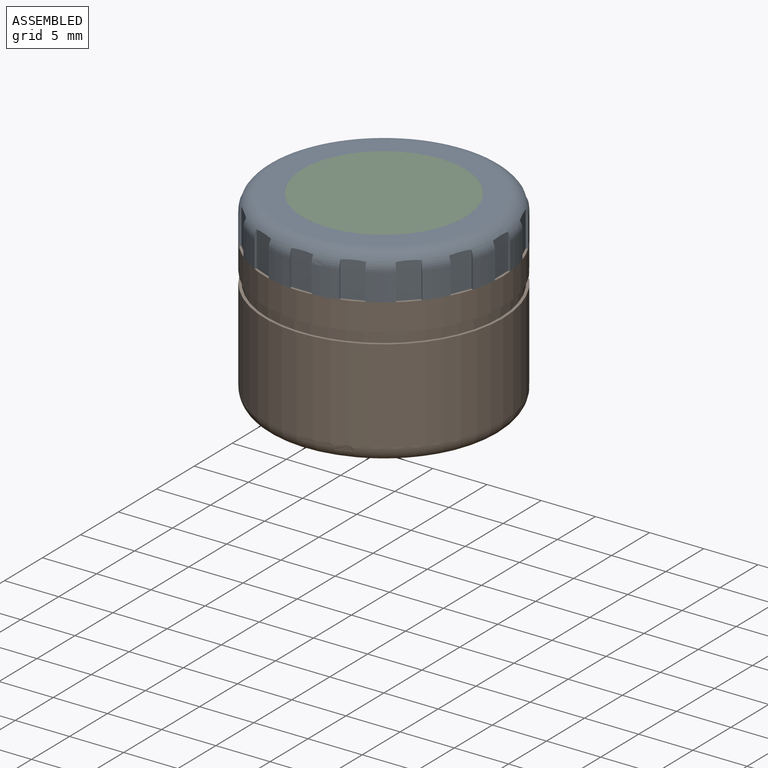
[diagram: assembled view]
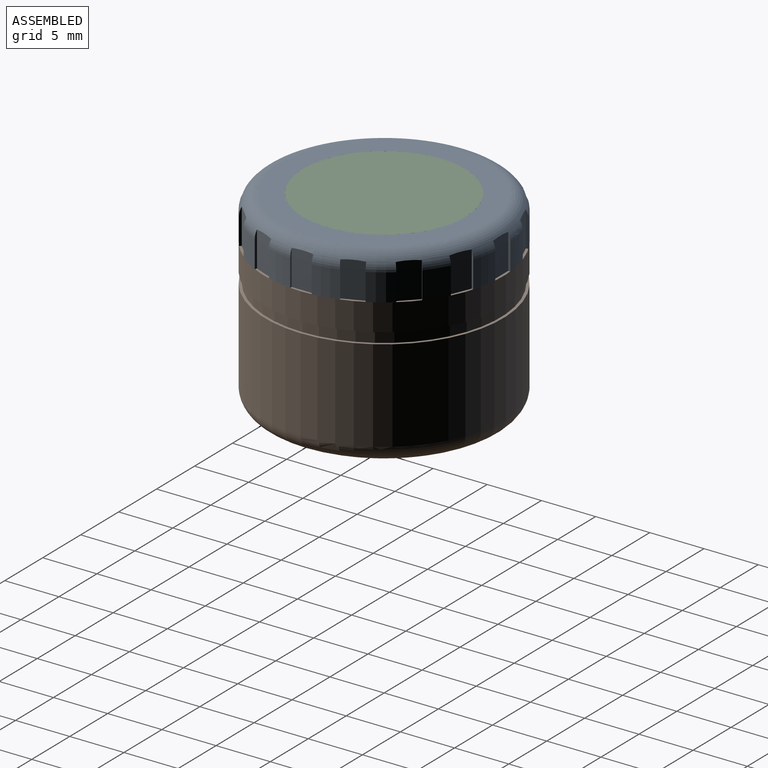
[diagram: assembled view, second angle]
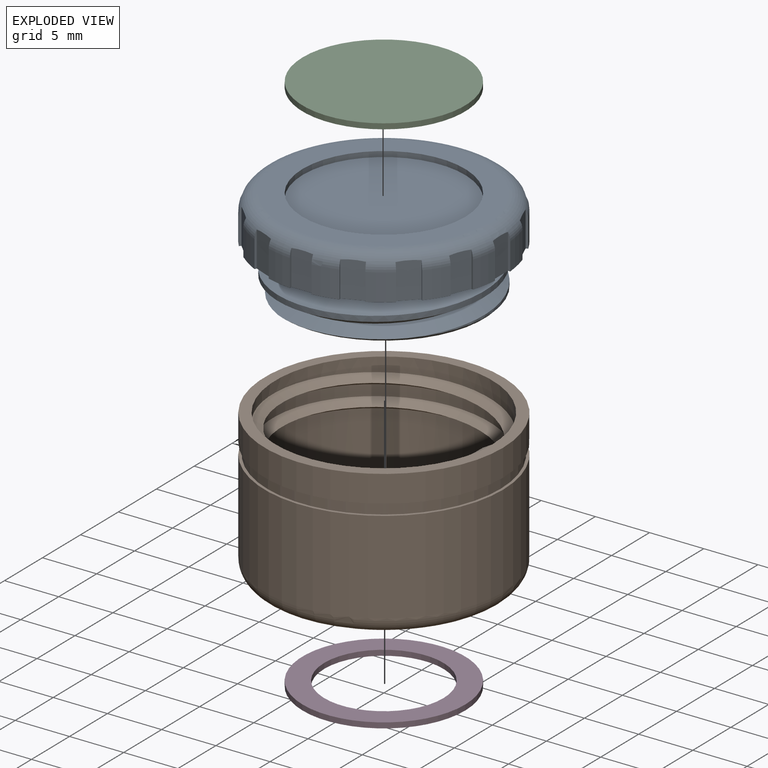
[diagram: exploded view]
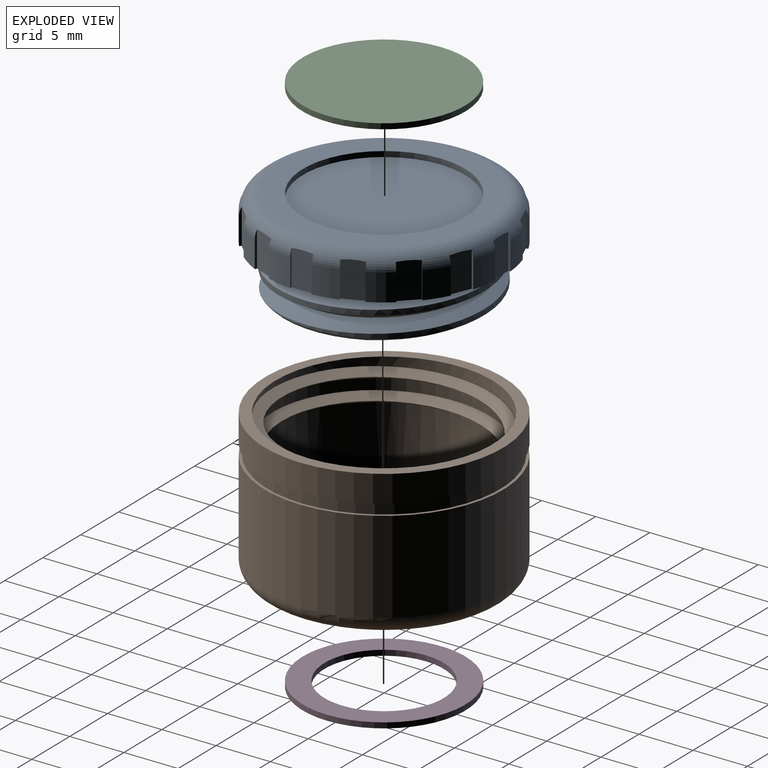
[diagram: exploded view, second angle]
ASSEMBLY  parts=4 mates=3
PART A: 74 faces, bbox 24.6x24.6x9.7 mm
  f0: plane 22.74x22.74mm, normal (0,0,1), area 116.8mm2, adj f1,f2,f3,f4,f5,f6,f7,f8
  f1: cylinder r=11mm len=2.5mm, axis (0,0,1), area 5.8mm2, adj f0,f17,f25,f69
  f2: cylinder r=11mm len=2.5mm, axis (0,0,1), area 5.8mm2, adj f0,f17,f66,f70
  f3: cylinder r=11mm len=2.5mm, axis (0,0,1), area 5.8mm2, adj f0,f17,f63,f67
  f4: cylinder r=11mm len=2.5mm, axis (0,0,1), area 5.8mm2, adj f0,f17,f60,f64
  f5: cylinder r=11mm len=2.5mm, axis (0,0,1), area 5.8mm2, adj f0,f17,f57,f61
  f6: cylinder r=11mm len=2.5mm, axis (0,0,1), area 5.8mm2, adj f0,f17,f54,f58
  f7: cylinder r=11mm len=2.5mm, axis (0,0,1), area 5.8mm2, adj f0,f17,f51,f55
  f8: cylinder r=11mm len=2.5mm, axis (0,0,1), area 5.8mm2, adj f0,f17,f48,f52
  f9: cylinder r=11mm len=2.5mm, axis (0,0,1), area 5.8mm2, adj f0,f17,f45,f49
  f10: cylinder r=11mm len=2.5mm, axis (0,0,1), area 5.8mm2, adj f0,f17,f42,f46
  f11: cylinder r=11mm len=2.5mm, axis (0,0,1), area 5.8mm2, adj f0,f17,f39,f43
  f12: cylinder r=11mm len=2.5mm, axis (0,0,1), area 5.8mm2, adj f0,f17,f36,f40
  f13: cylinder r=11mm len=2.5mm, axis (0,0,1), area 5.8mm2, adj f0,f17,f33,f37
  f14: cylinder r=11mm len=2.5mm, axis (0,0,1), area 5.8mm2, adj f0,f17,f30,f34
  f15: cylinder r=11mm len=2.5mm, axis (0,0,1), area 5.8mm2, adj f0,f17,f27,f31
  f16: cylinder r=11mm len=2.5mm, axis (0,0,1), area 5.8mm2, adj f0,f17,f24,f28
  f17: torus R=9.5mm, axis (0,0,1), area 128.9mm2, adj f1,f2,f3,f4,f5,f6,f7,f8
  f18: plane 19x19mm, normal (0,0,-1), area 106.8mm2, adj f17,f72
  f19: cylinder r=9.5mm len=19mm, axis (0,0,-1), area 56mm2, adj f0,f21,f22,f23
  f20: plane 18.5x18.48mm, normal (0,0,1), area 251mm2, adj f21,f22,f23
  f21: cone r=9.25mm half-angle=45deg, axis (0,0,-1), area 6.7mm2, adj f19,f20,f22,f23
  f22: bspline ~21.94x19mm, area 165.9mm2, adj f0,f19,f20,f21,f23
  f23: bspline ~21.94x19mm, area 165.8mm2, adj f0,f19,f20,f21,f22
  f24: plane 3.26x0.2mm, normal (0.38,-0.92,0), area 0.6mm2, adj f0,f16,f17,f26
  f25: plane 3.26x0.2mm, normal (-0.38,0.92,0), area 0.6mm2, adj f0,f1,f17,f26
  f26: plane 3.5x2.02mm, normal (0.92,0.38,0), area 6.6mm2, adj f0,f17,f24,f25
  f27: plane 3.26x0.15mm, normal (0.71,-0.71,0), area 0.6mm2, adj f0,f15,f17,f29
  f28: plane 3.26x0.15mm, normal (-0.71,0.71,0), area 0.6mm2, adj f0,f16,f17,f29
  f29: plane 3.5x1.59mm, normal (0.71,0.71,0), area 6.6mm2, adj f0,f17,f27,f28
  f30: plane 3.26x0.2mm, normal (0.92,-0.38,0), area 0.6mm2, adj f0,f14,f17,f32
  f31: plane 3.26x0.2mm, normal (-0.92,0.38,0), area 0.6mm2, adj f0,f15,f17,f32
  f32: plane 3.5x2.02mm, normal (0.38,0.92,0), area 6.6mm2, adj f0,f17,f30,f31
  f33: plane 3.26x0.22mm, normal (1,0,0), area 0.6mm2, adj f0,f13,f17,f35
  f34: plane 3.26x0.22mm, normal (-1,0,0), area 0.6mm2, adj f0,f14,f17,f35
  f35: plane 3.33x2mm, normal (0,1,0), area 6.6mm2, adj f0,f17,f33,f34
  f36: plane 3.26x0.2mm, normal (0.92,0.38,0), area 0.6mm2, adj f0,f12,f17,f38
  f37: plane 3.26x0.2mm, normal (-0.92,-0.38,0), area 0.6mm2, adj f0,f13,f17,f38
  f38: plane 3.5x2.02mm, normal (-0.38,0.92,0), area 6.6mm2, adj f0,f17,f36,f37
  f39: plane 3.26x0.15mm, normal (0.71,0.71,0), area 0.6mm2, adj f0,f11,f17,f41
  f40: plane 3.26x0.15mm, normal (-0.71,-0.71,0), area 0.6mm2, adj f0,f12,f17,f41
  f41: plane 3.5x1.59mm, normal (-0.71,0.71,0), area 6.6mm2, adj f0,f17,f39,f40
  f42: plane 3.26x0.2mm, normal (0.38,0.92,0), area 0.6mm2, adj f0,f10,f17,f44
  f43: plane 3.26x0.2mm, normal (-0.38,-0.92,0), area 0.6mm2, adj f0,f11,f17,f44
  f44: plane 3.5x2.02mm, normal (-0.92,0.38,0), area 6.6mm2, adj f0,f17,f42,f43
  f45: plane 3.26x0.22mm, normal (0,1,0), area 0.6mm2, adj f0,f9,f17,f47
  f46: plane 3.26x0.22mm, normal (0,-1,0), area 0.6mm2, adj f0,f10,f17,f47
  f47: plane 3.33x2mm, normal (-1,0,0), area 6.6mm2, adj f0,f17,f45,f46
  f48: plane 3.26x0.2mm, normal (-0.38,0.92,0), area 0.6mm2, adj f0,f8,f17,f50
  f49: plane 3.26x0.2mm, normal (0.38,-0.92,0), area 0.6mm2, adj f0,f9,f17,f50
  f50: plane 3.5x2.02mm, normal (-0.92,-0.38,0), area 6.6mm2, adj f0,f17,f48,f49
  f51: plane 3.26x0.15mm, normal (-0.71,0.71,0), area 0.6mm2, adj f0,f7,f17,f53
  f52: plane 3.26x0.15mm, normal (0.71,-0.71,0), area 0.6mm2, adj f0,f8,f17,f53
  f53: plane 3.5x1.59mm, normal (-0.71,-0.71,0), area 6.6mm2, adj f0,f17,f51,f52
  f54: plane 3.26x0.2mm, normal (-0.92,0.38,0), area 0.6mm2, adj f0,f6,f17,f56
  f55: plane 3.26x0.2mm, normal (0.92,-0.38,0), area 0.6mm2, adj f0,f7,f17,f56
  f56: plane 3.5x2.02mm, normal (-0.38,-0.92,0), area 6.6mm2, adj f0,f17,f54,f55
  f57: plane 3.26x0.22mm, normal (-1,0,0), area 0.6mm2, adj f0,f5,f17,f59
  f58: plane 3.26x0.22mm, normal (1,0,0), area 0.6mm2, adj f0,f6,f17,f59
  f59: plane 3.33x2mm, normal (0,-1,0), area 6.6mm2, adj f0,f17,f57,f58
  f60: plane 3.26x0.2mm, normal (-0.92,-0.38,0), area 0.6mm2, adj f0,f4,f17,f62
  f61: plane 3.26x0.2mm, normal (0.92,0.38,0), area 0.6mm2, adj f0,f5,f17,f62
  f62: plane 3.5x2.02mm, normal (0.38,-0.92,0), area 6.6mm2, adj f0,f17,f60,f61
  f63: plane 3.26x0.15mm, normal (-0.71,-0.71,0), area 0.6mm2, adj f0,f3,f17,f65
  f64: plane 3.26x0.15mm, normal (0.71,0.71,0), area 0.6mm2, adj f0,f4,f17,f65
  f65: plane 3.5x1.59mm, normal (0.71,-0.71,0), area 6.6mm2, adj f0,f17,f63,f64
  f66: plane 3.26x0.2mm, normal (-0.38,-0.92,0), area 0.6mm2, adj f0,f2,f17,f68
  f67: plane 3.26x0.2mm, normal (0.38,0.92,0), area 0.6mm2, adj f0,f3,f17,f68
  f68: plane 3.5x2.02mm, normal (0.92,-0.38,0), area 6.6mm2, adj f0,f17,f66,f67
  f69: plane 3.26x0.22mm, normal (0,-1,0), area 0.6mm2, adj f0,f1,f17,f71
  f70: plane 3.26x0.22mm, normal (0,1,0), area 0.6mm2, adj f0,f2,f17,f71
  f71: plane 3.37x2.05mm, normal (1,0,0), area 6.6mm2, adj f0,f17,f69,f70
  f72: cylinder r=7.5mm len=15mm, axis (0,0,-1), area 23.6mm2, adj f18,f73
  f73: plane 15x15mm, normal (0,0,-1), area 176.7mm2, adj f72
PART B: 20 faces, bbox 23.8x23.8x13.5 mm
  f0: cylinder r=11mm len=22mm, axis (0,0,-1), area 172.8mm2, adj f1,f10
  f1: plane 22x22mm, normal (0,0,-1), area 66mm2, adj f0,f2
  f2: cylinder r=10mm len=20mm, axis (0,0,-1), area 62.8mm2, adj f1,f3,f7,f8
  f3: cylinder r=10mm len=20mm, axis (0,0,-1), area 62.8mm2, adj f2,f4,f8,f9
  f4: cylinder r=10mm len=20mm, axis (0,0,-1), area 537.2mm2, adj f3,f5,f6,f9
  f5: plane 20x20mm, normal (0,0,-1), area 314.2mm2, adj f4
  f6: plane 1x0.87mm, normal (0,1,0), area 0.4mm2, adj f4,f8,f9
  f7: plane 1x0.87mm, normal (0,-1,0), area 0.4mm2, adj f2,f8,f9
  f8: bspline ~23.09x20mm, area 120.3mm2, adj f2,f3,f6,f7,f9
  f9: bspline ~23.09x20mm, area 120.3mm2, adj f3,f4,f6,f7,f8
  f10: plane 22x22mm, normal (0,0,1), area 17.1mm2, adj f0,f12
  f11: plane 22x22mm, normal (0,0,-1), area 17.1mm2, adj f12,f15
  f12: cylinder r=10.75mm len=21.5mm, axis (0,0,1), area 67.5mm2, adj f10,f11
  f13: plane 19x19mm, normal (0,0,1), area 106.8mm2, adj f14,f17
  f14: torus R=9.5mm, axis (0,0,1), area 154.8mm2, adj f13,f15
  f15: cylinder r=11mm len=22mm, axis (0,0,-1), area 590.9mm2, adj f11,f14
  f16: cylinder r=5.5mm len=11mm, axis (0,0,1), area 17.3mm2, adj f18,f19
  f17: cylinder r=7.5mm len=15mm, axis (0,0,1), area 23.6mm2, adj f13,f18
  f18: plane 15x15mm, normal (0,0,1), area 81.7mm2, adj f16,f17
  f19: plane 11x11mm, normal (0,0,1), area 95mm2, adj f16
PART C: 3 faces, bbox 15x15x0.5 mm
  f0: cylinder r=7.5mm len=15mm, axis (0,0,-1), area 23.6mm2, adj f1,f2
  f1: plane 15x15mm, normal (0,0,1), area 176.7mm2, adj f0
  f2: plane 15x15mm, normal (0,0,-1), area 176.7mm2, adj f0
PART D: 4 faces, bbox 15x15x0.5 mm
  f0: cylinder r=5.5mm len=11mm, axis (0,0,1), area 17.3mm2, adj f2,f3
  f1: cylinder r=7.5mm len=15mm, axis (0,0,1), area 23.6mm2, adj f2,f3
  f2: plane 15x15mm, normal (0,0,-1), area 81.7mm2, adj f0,f1
  f3: plane 15x15mm, normal (0,0,1), area 81.7mm2, adj f0,f1
PLACE A rot(axis=(1,0,0),180deg) t=(0,0,13.55)mm
PLACE B rot(axis=(1,0,0),180deg) t=(0,0,13.55)mm
PLACE C rot(axis=(1,0,0),180deg) t=(0,0,13.55)mm
PLACE D rot(axis=(1,0,0),180deg) t=(0,0,13.55)mm
MATE fastened B.f17 <-> D.f0  axis (0,0,-1) through (0,0,0.5)mm
MATE fastened C.f0 <-> A.f72  axis (0,0,-1) through (0,0,17.05)mm
MATE fastened A.f19 <-> B.f0  axis (0,0,-1) through (0,0,9.55)mm
